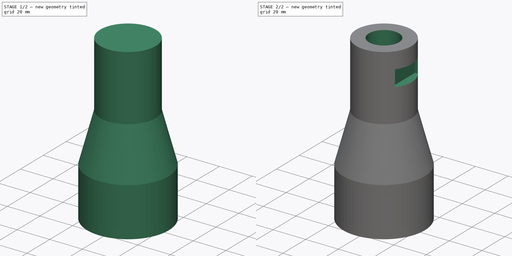
[diagram: build sequence overview — one tinted view per stage of 2, left to right]
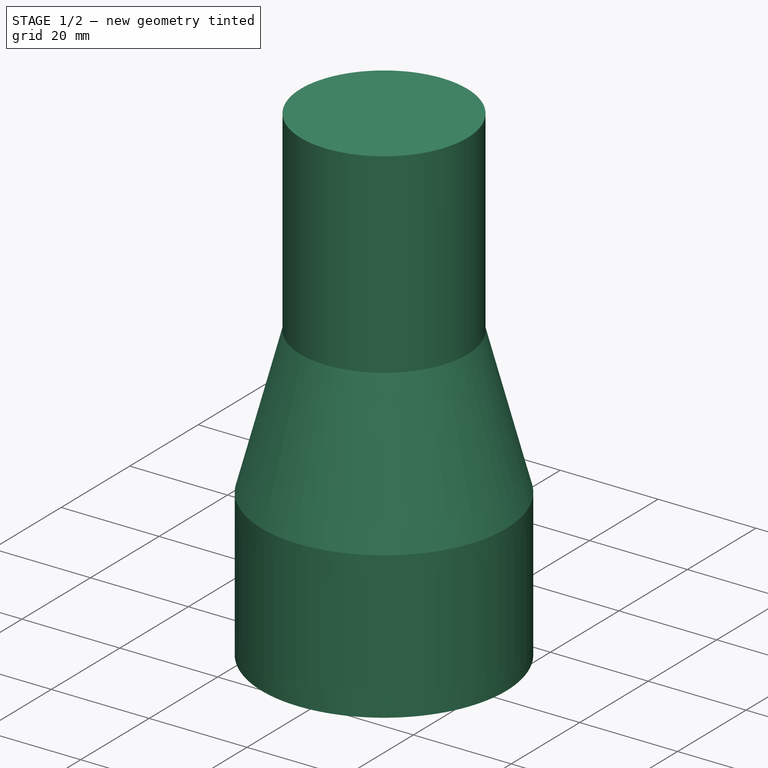
[diagram: stage 1 of 2 — iso view after this stage's code; geometry added in this stage tinted green]
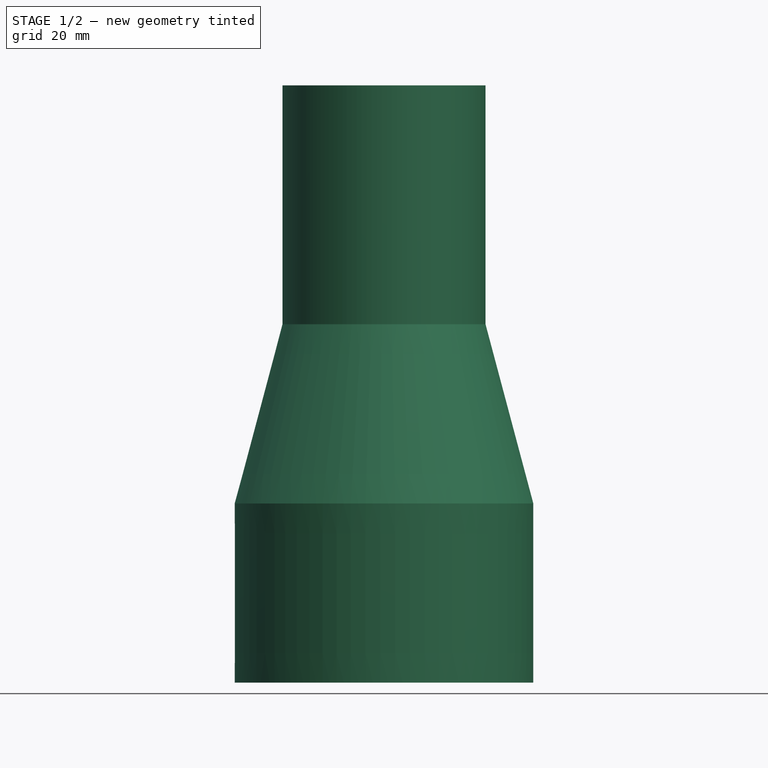
[diagram: stage 1 of 2 — front view after this stage's code; geometry added in this stage tinted green]
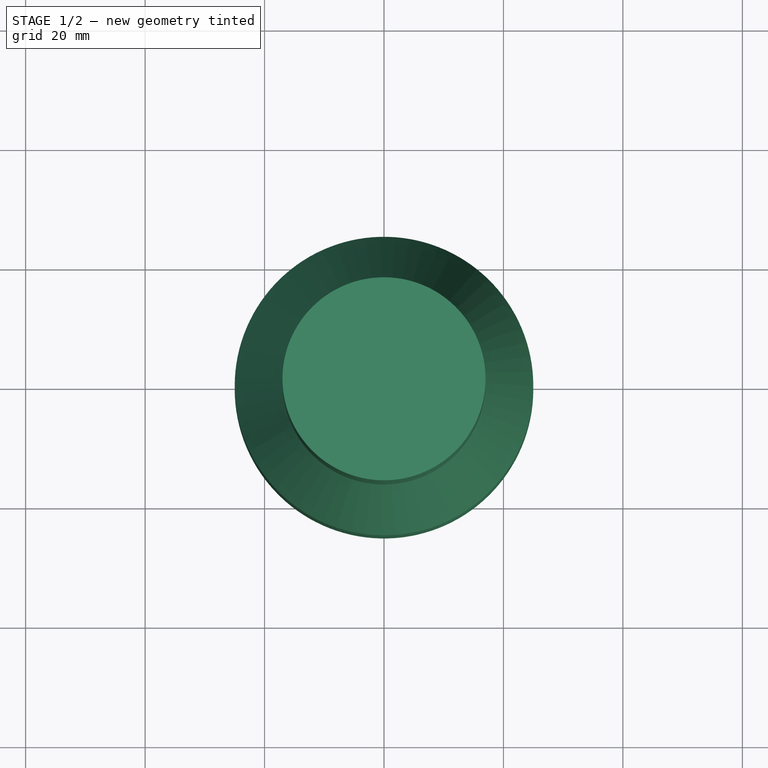
[diagram: stage 1 of 2 — top view after this stage's code; geometry added in this stage tinted green]
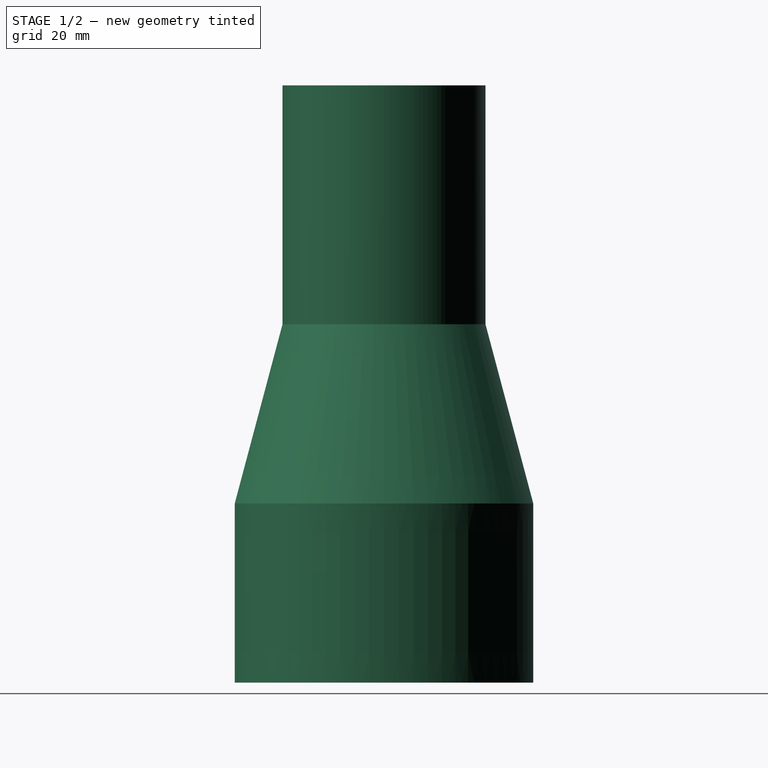
[diagram: stage 1 of 2 — right view after this stage's code; geometry added in this stage tinted green]
FCSTD DOCUMENT  (FreeCAD 1.0R39285 (Git))
Label: vacuumAdapter
License: All rights reserved
objects: Sketcher::SketchObject×7, PartDesign::Plane×4, PartDesign::Pocket×2, PartDesign::AdditiveLoft×1, PartDesign::Hole×1, PartDesign::Body×1
note: 31 computed .brp shape members not serialized (recipe doc carries the construction recipe); baked Part::Feature solids carry a one-line shape summary decoded from their .brp

FEATURE [Sketcher::SketchObject] Sketch  label="small_1"
  ArcFitTolerance = 1e-06
  AttachmentSupport = -> [XY_Plane]
  FullyConstrained = true
  MakeInternals = false
  MapMode = 5
  sketch-geometry (1):
    g0: Circle CenterX=0 CenterY=0 CenterZ=0 NormalX=0 NormalY=0 NormalZ=1 AngleXU=0 Radius=25
  constraints (2):
    c: Diameter(g0) = 50
    c: Coincident(g0,g-1)
FEATURE [PartDesign::Plane] DatumPlane  label="small_plane"
  AttachmentOffset = pos=(0,0,30) rot=(0,0,1;0rad)
  AttachmentSupport = -> [XY_Plane]
  Length = 60
  MapMode = 5
  Placement = pos=(0,0,30) rot=(0,0,1;0rad)
  ResizeMode = 0
  Width = 60
FEATURE [Sketcher::SketchObject] Sketch001  label="small_2"
  ArcFitTolerance = 1e-06
  AttachmentSupport = -> [DatumPlane]
  ExternalGeometry = -> [Sketch]
  FullyConstrained = true
  MakeInternals = false
  MapMode = 5
  Placement = pos=(0,0,30) rot=(0,0,1;0rad)
  sketch-geometry (1):
    g0: Circle CenterX=0 CenterY=0 CenterZ=0 NormalX=0 NormalY=0 NormalZ=1 AngleXU=0 Radius=25
  constraints (2):
    c: Coincident(g0,g-1)
    c: Tangent(g0,g-3)
FEATURE [PartDesign::Plane] DatumPlane001
  AttachmentOffset = pos=(0,0,60) rot=(0,0,1;0rad)
  AttachmentSupport = -> [XY_Plane]
  Length = 60
  MapMode = 5
  Placement = pos=(0,0,60) rot=(0,0,1;0rad)
  ResizeMode = 0
  Width = 60
FEATURE [PartDesign::Plane] DatumPlane002
  AttachmentOffset = pos=(0,0,100) rot=(0,0,1;0rad)
  AttachmentSupport = -> [XY_Plane]
  Length = 60
  MapMode = 2
  Placement = pos=(0,0,100) rot=(0,0,1;0rad)
  ResizeMode = 0
  Width = 60
FEATURE [Sketcher::SketchObject] Sketch002
  ArcFitTolerance = 1e-06
  AttachmentSupport = -> [DatumPlane001]
  FullyConstrained = true
  MakeInternals = false
  MapMode = 5
  Placement = pos=(0,0,60) rot=(0,0,1;0rad)
  sketch-geometry (1):
    g0: Circle CenterX=0 CenterY=0 CenterZ=0 NormalX=0 NormalY=0 NormalZ=1 AngleXU=0 Radius=17
  constraints (2):
    c: Diameter(g0) = 34
    c: Coincident(g0,g-1)
FEATURE [Sketcher::SketchObject] Sketch003
  ArcFitTolerance = 1e-06
  AttachmentSupport = -> [DatumPlane002]
  FullyConstrained = true
  MakeInternals = false
  MapMode = 5
  Placement = pos=(0,0,100) rot=(0,0,1;0rad)
  sketch-geometry (1):
    g0: Circle CenterX=0 CenterY=0 CenterZ=0 NormalX=0 NormalY=0 NormalZ=1 AngleXU=0 Radius=17
  constraints (2):
    c: Coincident(g0,g-1)
    c: Diameter(g0) = 34
FEATURE [PartDesign::AdditiveLoft] AdditiveLoft
  Closed = false
  Placement = pos=(0,0,100) rot=(0,0,1;0rad)
  Profile = -> Sketch003
  Refine = true
  Ruled = true
  Sections = -> [Sketch002,Sketch001,Sketch]
  Suppressed = false
FEATURE [Sketcher::SketchObject] Sketch004
  ArcFitTolerance = 1e-06
  AttachmentSupport = -> [AdditiveLoft]
  FullyConstrained = true
  MakeInternals = false
  MapMode = 5
  Placement = pos=(0,0,0) rot=(1,0,0;3.14159rad)
  sketch-geometry (1):
    g0: Circle CenterX=0 CenterY=0 CenterZ=0 NormalX=0 NormalY=0 NormalZ=1 AngleXU=0 Radius=1.5
  constraints (2):
    c: Diameter(g0) = 3
    c: Coincident(g0,g-1)
FEATURE [PartDesign::Hole] Hole
  BaseFeature = -> AdditiveLoft
  CustomThreadClearance = 0
  Depth = 10
  DepthType = 0
  Diameter = 25.038
  DrillForDepth = false
  DrillPoint = 1
  DrillPointAngle = 118
  HoleCutCountersinkAngle = 90
  HoleCutCustomValues = false
  HoleCutDepth = 0
  HoleCutDiameter = 24.15
  HoleCutType = 0
  ModelThread = true
  Placement = pos=(0,0,100) rot=(0,0,1;0rad)
  Profile = -> Sketch004 [Edge1]
  Refine = true
  Suppressed = false
  Tapered = true
  TaperedAngle = 93
  ThreadClass = 0
  ThreadDepth = 10
  ThreadDepthType = 0
  ThreadDirection = 0
  ThreadFit = 0
  ThreadSize = 55
  ThreadType = 2
  Threaded = true
  UseCustomThreadClearance = false
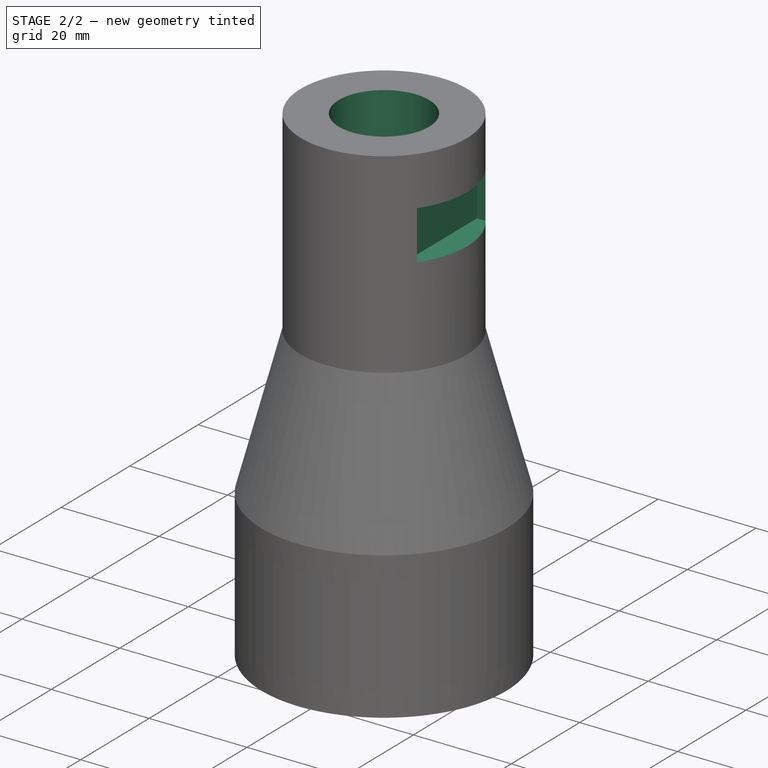
[diagram: stage 2 of 2 — iso view after this stage's code; geometry added in this stage tinted green]
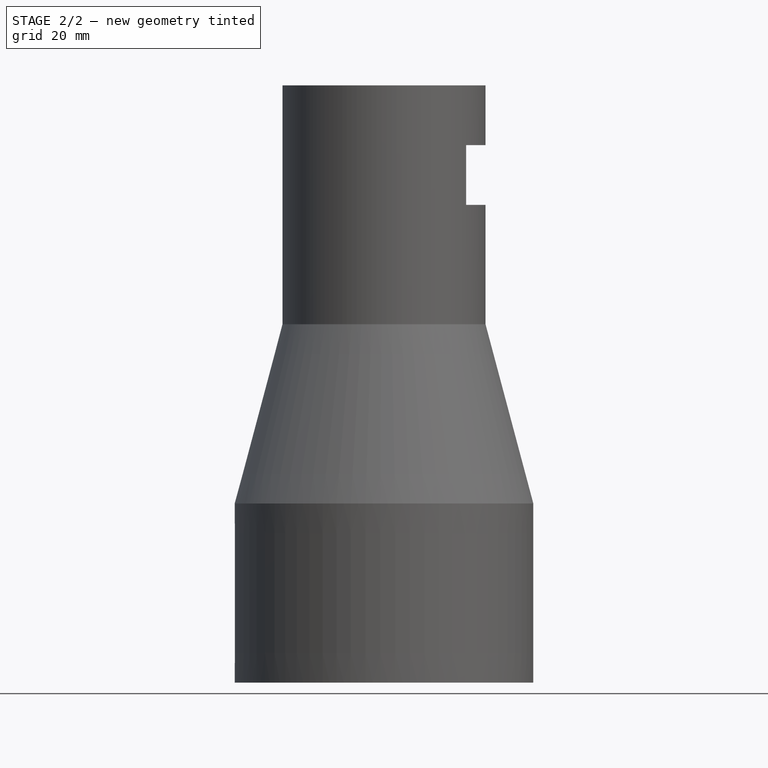
[diagram: stage 2 of 2 — front view after this stage's code; geometry added in this stage tinted green]
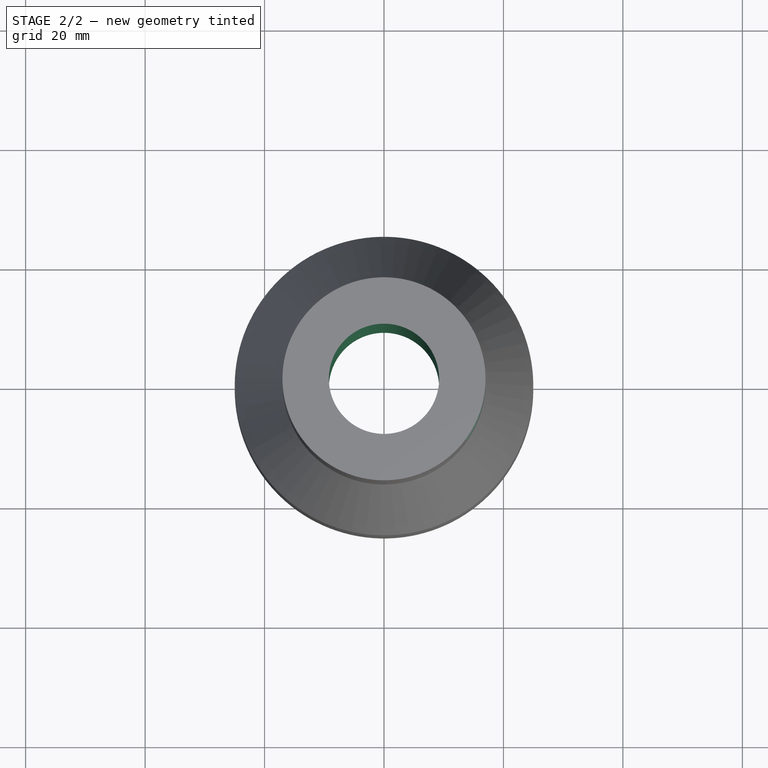
[diagram: stage 2 of 2 — top view after this stage's code; geometry added in this stage tinted green]
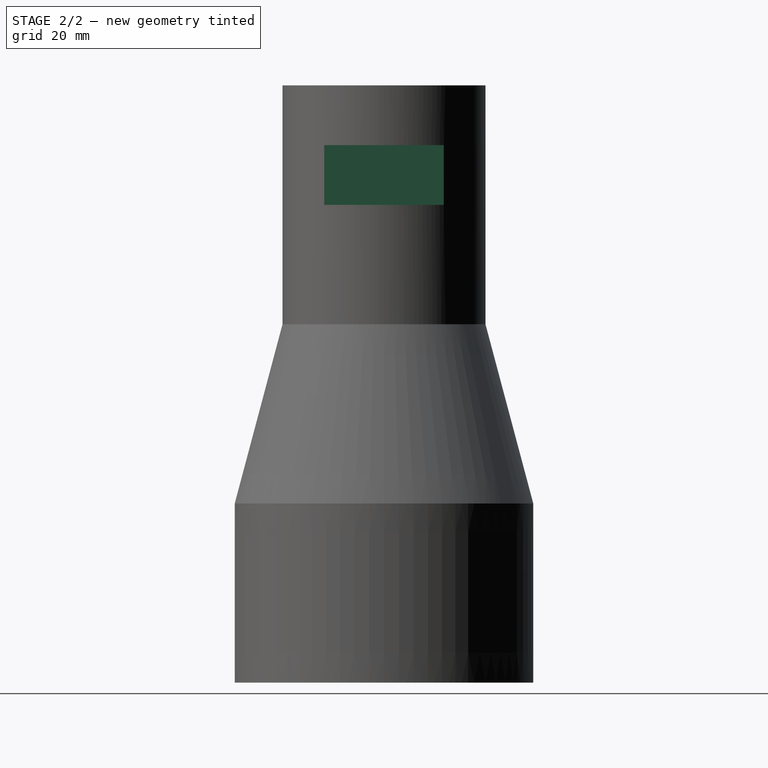
[diagram: stage 2 of 2 — right view after this stage's code; geometry added in this stage tinted green]
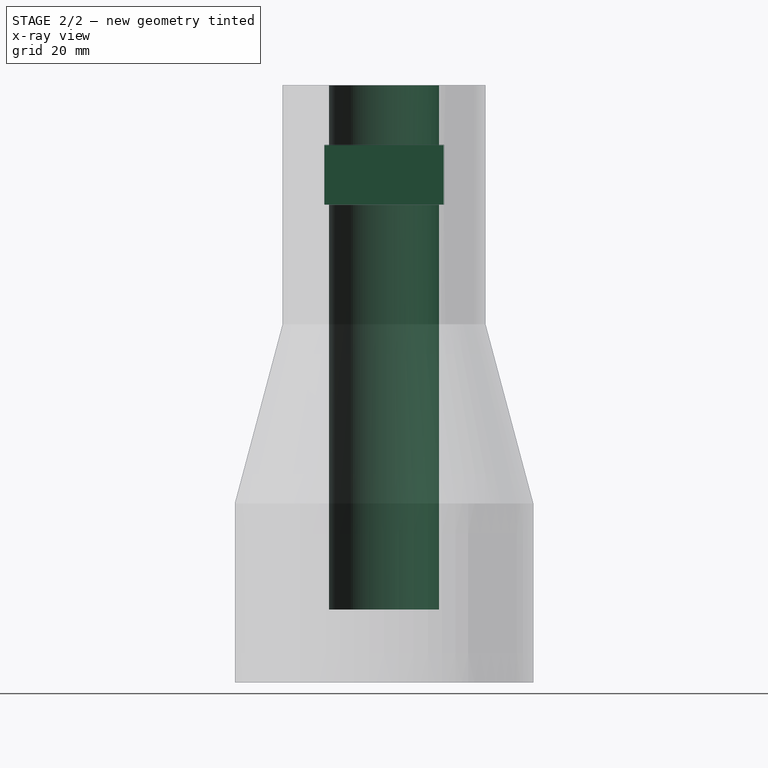
[diagram: stage 2 of 2 — x-ray composite at the right view; earlier geometry ghosted, this stage's added geometry solid]
FEATURE [PartDesign::Plane] DatumPlane003
  AttachmentSupport = -> [YZ_Plane,Hole]
  Length = 60
  MapMode = 53
  Placement = pos=(17,-1.9e-15,1.9e-15) rot=(0.57735,0.57735,0.57735;2.0944rad)
  ResizeMode = 0
  Width = 60
FEATURE [Sketcher::SketchObject] Sketch006
  ArcFitTolerance = 1e-06
  AttachmentSupport = -> [DatumPlane003]
  FullyConstrained = true
  MakeInternals = false
  MapMode = 5
  Placement = pos=(17,-1.9e-15,1.9e-15) rot=(0.57735,0.57735,0.57735;2.0944rad)
  sketch-geometry (4):
    g0: LineSegment StartX=-10 StartY=80 StartZ=0 EndX=-10 EndY=90 EndZ=0
    g1: LineSegment StartX=-10 StartY=90 StartZ=0 EndX=10 EndY=90 EndZ=0
    g2: LineSegment StartX=10 StartY=90 StartZ=0 EndX=10 EndY=80 EndZ=0
    g3: LineSegment StartX=10 StartY=80 StartZ=0 EndX=-10 EndY=80 EndZ=0
  constraints (12):
    c: Coincident(g0,g1)
    c: Coincident(g1,g2)
    c: Coincident(g2,g3)
    c: Coincident(g3,g0)
    c: Vertical(g0)
    c: Vertical(g2)
    c: Horizontal(g1)
    c: Horizontal(g3)
    c: Distance(g-3,g1) = 10
    c: DistanceX(g3,g3) = 20
    c: DistanceY(g0,g0) = 10
    c: Distance(g-2,g0) = 10
FEATURE [PartDesign::Pocket] Pocket
  BaseFeature = -> Hole
  Direction = (-1,0,0)
  Length = 5
  Length2 = 5
  Placement = pos=(0,0,100) rot=(0,0,1;0rad)
  Profile = -> Sketch006
  ReferenceAxis = -> Sketch006 [N_Axis]
  Refine = true
  Suppressed = false
  Type = 0
FEATURE [Sketcher::SketchObject] Sketch007
  ArcFitTolerance = 1e-06
  AttachmentSupport = -> [Pocket]
  FullyConstrained = false
  MakeInternals = false
  MapMode = 5
  Placement = pos=(0,0,100) rot=(0,0,1;0rad)
  sketch-geometry (1):
    g0: Circle CenterX=0 CenterY=0 CenterZ=0 NormalX=0 NormalY=0 NormalZ=1 AngleXU=0 Radius=9.23028
  constraints (1):
    c: Coincident(g0,g-1)
FEATURE [PartDesign::Pocket] Pocket001
  BaseFeature = -> Pocket
  Direction = (0,0,-1)
  Length = 5
  Length2 = 5
  Placement = pos=(0,0,100) rot=(0,0,1;0rad)
  Profile = -> Sketch007
  ReferenceAxis = -> Sketch007 [N_Axis]
  Refine = true
  Suppressed = false
  Type = 1
FEATURE [PartDesign::Body] Body  label="adapterPart"
  AllowCompound = false
  Group = -> [Sketch,DatumPlane,Sketch001,DatumPlane001,DatumPlane002,Sketch002,Sketch003,AdditiveLoft,Sketch004,Hole,DatumPlane003,Sketch006,Pocket,Sketch007,Pocket001]
  Origin = -> Origin
  Tip = -> Pocket001
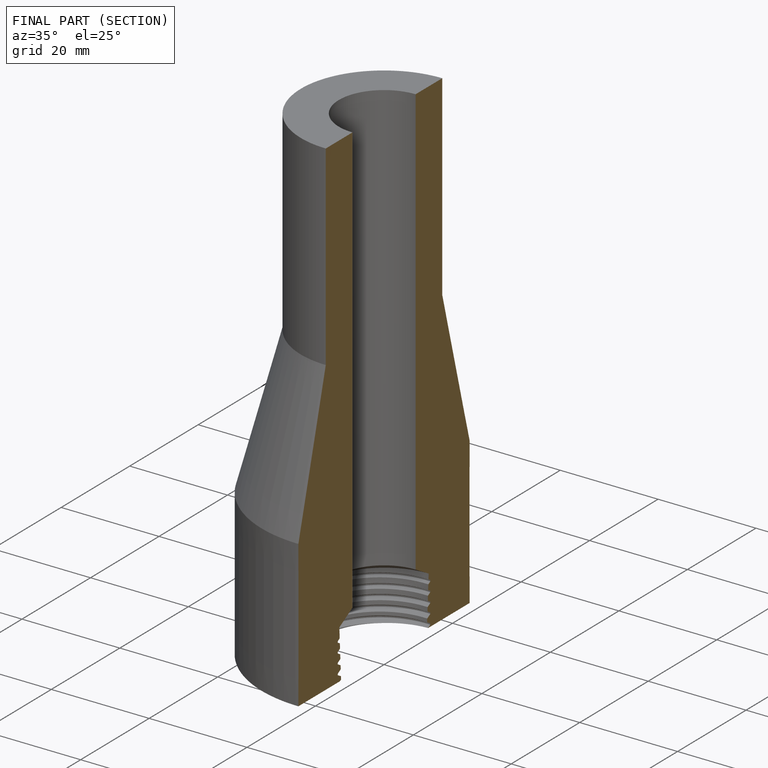
[diagram: finished part — half-section view (interior)]
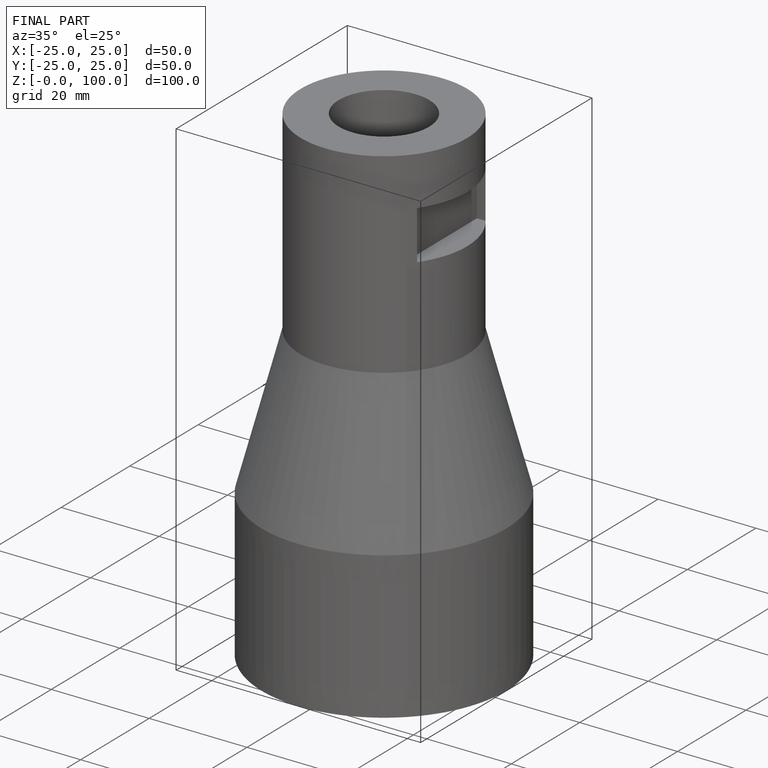
[diagram: finished part — iso view with bounding-box wireframe]
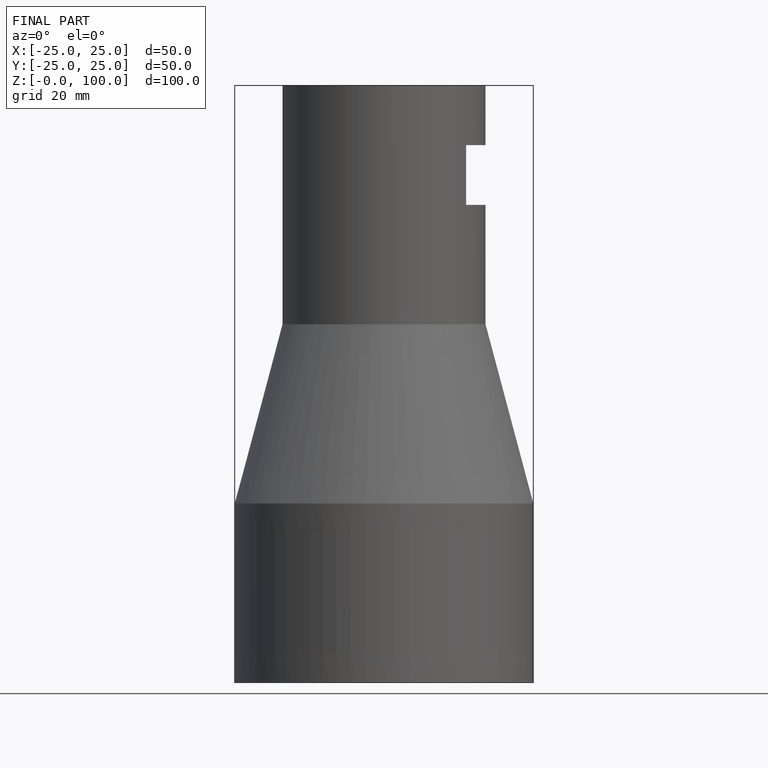
[diagram: finished part — front view with bounding-box wireframe]
